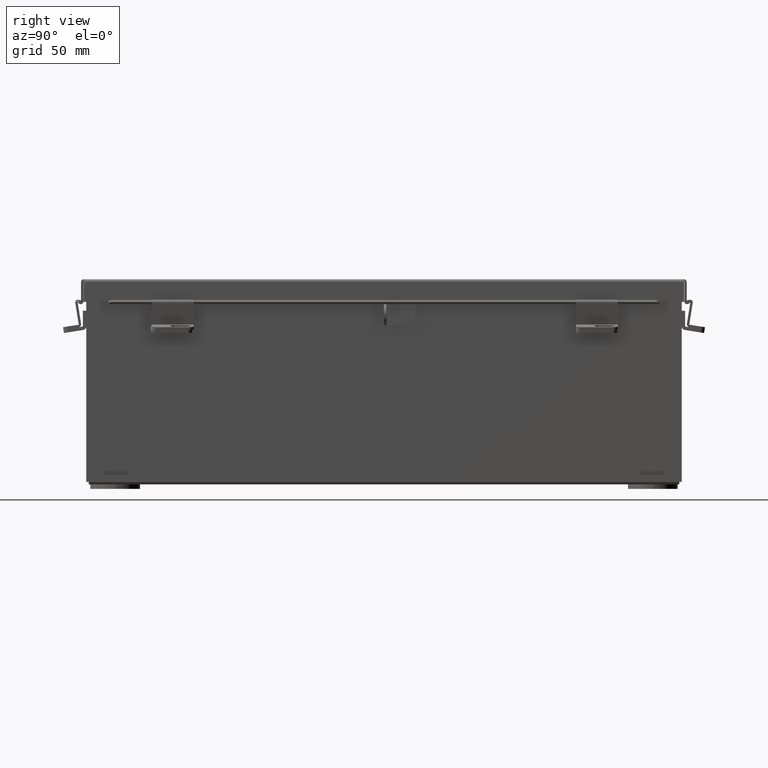
[diagram: clean part render]
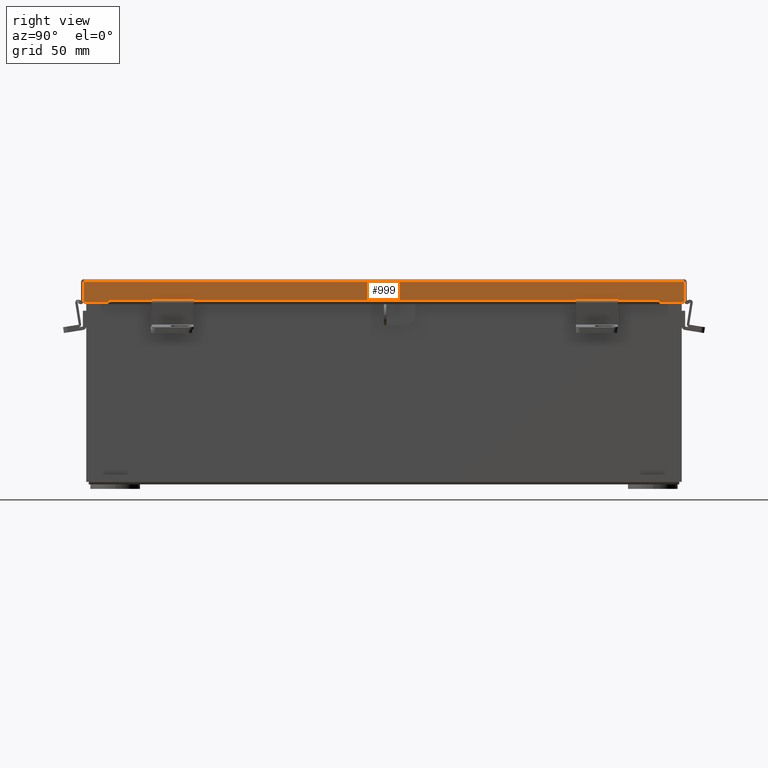
[diagram: same view with one face highlighted and labeled with its STEP entity id]
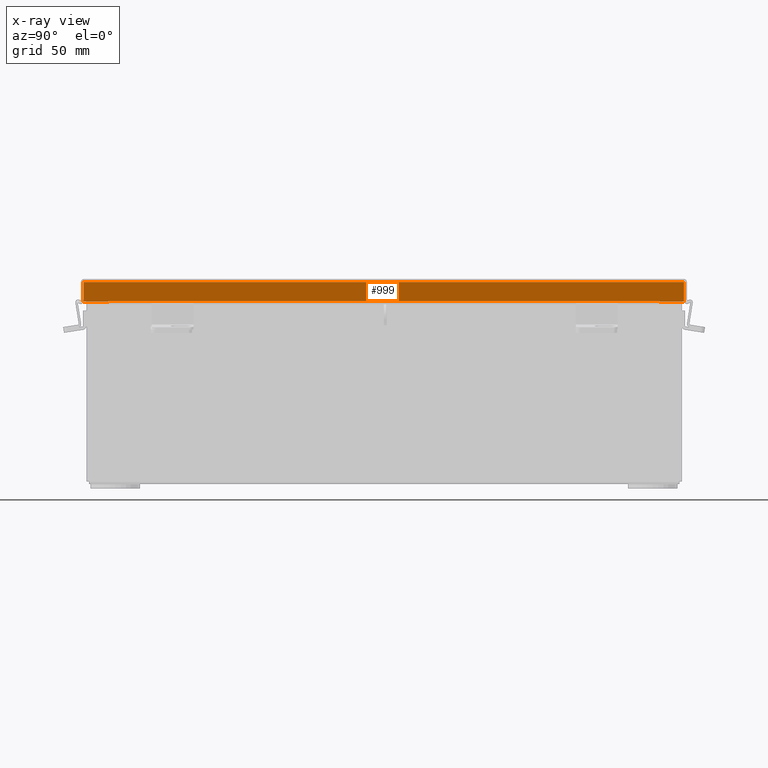
[diagram: x-ray of the same camera — body ghosted, the highlighted face saturated]
A machine part, right view. The second image highlights one B-rep face of the part: STEP entity #999.
The next image is the same camera in x-ray: the body ghosted, the highlighted face saturated — about 0% of this face is hidden behind the body in this view.
In plain terms, the highlighted planar face has unit normal (-1, 0, -0).
Its self-contained STEP definition (entity closure, byte-faithful):
#39 = VECTOR ( 'NONE', #4842, 39.37007874015748100 ) ;
#281 = ORIENTED_EDGE ( 'NONE', *, *, #16780, .T. ) ;
#288 = LINE ( 'NONE', #6916, #15415 ) ;
#876 = ORIENTED_EDGE ( 'NONE', *, *, #6637, .F. ) ;
#951 = VERTEX_POINT ( 'NONE', #4897 ) ;
#999 = ADVANCED_FACE ( 'NONE', ( #10918 ), #1904, .F. ) ;
#1133 = VECTOR ( 'NONE', #11551, 39.37007874015748100 ) ;
#1185 = AXIS2_PLACEMENT_3D ( 'NONE', #3490, #13787, #4962 ) ;
#1489 = VECTOR ( 'NONE', #17888, 39.37007874015748100 ) ;
#1598 = LINE ( 'NONE', #10055, #1133 ) ;
#1849 = EDGE_CURVE ( 'NONE', #17436, #951, #5839, .T. ) ;
#1904 = PLANE ( 'NONE',  #1185 ) ;
#2116 = CARTESIAN_POINT ( 'NONE',  ( -3.156250000000009800, 9.074478932188142700, 0.01300000000000010700 ) ) ;
#2332 = VECTOR ( 'NONE', #11973, 39.37007874015748100 ) ;
#3228 = CARTESIAN_POINT ( 'NONE',  ( -3.156250000000012000, -3.734948428837859500E-018, 0.6122999999999994000 ) ) ;
#3342 = LINE ( 'NONE', #5749, #10669 ) ;
#3490 = CARTESIAN_POINT ( 'NONE',  ( -3.156250000000009800, 0.0000000000000000000, -1.202013117212275700E-014 ) ) ;
#4094 = ORIENTED_EDGE ( 'NONE', *, *, #16694, .F. ) ;
#4302 = EDGE_CURVE ( 'NONE', #13264, #11294, #3342, .T. ) ;
#4377 = LINE ( 'NONE', #12174, #39 ) ;
#4842 = DIRECTION ( 'NONE',  ( 7.009925220120712300E-014, 7.009925220120695800E-014, -1.000000000000000000 ) ) ;
#4897 = CARTESIAN_POINT ( 'NONE',  ( -3.156250000000012000, -8.324478932188121400, 0.6123000000000070600 ) ) ;
#4939 = CARTESIAN_POINT ( 'NONE',  ( -3.156250000000012000, 9.074478932188142700, 0.6122999999999994000 ) ) ;
#4962 = DIRECTION ( 'NONE',  ( 3.569293475308535600E-015, -1.708993195451452600E-029, -1.000000000000000000 ) ) ;
#5732 = LINE ( 'NONE', #10201, #16058 ) ;
#5749 = CARTESIAN_POINT ( 'NONE',  ( -3.156250000000012000, 8.324478932188140900, 0.5967115427318793200 ) ) ;
#5839 = LINE ( 'NONE', #3228, #1489 ) ;
#5863 = CARTESIAN_POINT ( 'NONE',  ( -3.156250000000012000, 8.324478932188140900, 0.5967115427318793200 ) ) ;
#5951 = LINE ( 'NONE', #9586, #17168 ) ;
#6637 = EDGE_CURVE ( 'NONE', #13304, #11955, #288, .T. ) ;
#6916 = CARTESIAN_POINT ( 'NONE',  ( -3.156250000000009800, 9.156250000000008900, 0.01300000000000010700 ) ) ;
#8375 = ORIENTED_EDGE ( 'NONE', *, *, #9858, .F. ) ;
#8379 = DIRECTION ( 'NONE',  ( -3.683464985383588700E-029, 1.000000000000000000, -2.983588252464364200E-017 ) ) ;
#8858 = CARTESIAN_POINT ( 'NONE',  ( -3.156250000000012000, 8.324478932188140900, 0.6122999999999994000 ) ) ;
#8977 = CARTESIAN_POINT ( 'NONE',  ( -3.156250000000017300, -9.074478932188125000, -1.092739197465705300E-014 ) ) ;
#9168 = EDGE_CURVE ( 'NONE', #13304, #17436, #17930, .T. ) ;
#9397 = ORIENTED_EDGE ( 'NONE', *, *, #10303, .F. ) ;
#9586 = CARTESIAN_POINT ( 'NONE',  ( -3.156250000000009800, 9.074478932188142700, 0.0000000000000000000 ) ) ;
#9858 = EDGE_CURVE ( 'NONE', #13997, #13264, #4377, .T. ) ;
#10055 = CARTESIAN_POINT ( 'NONE',  ( -3.156250000000012000, -3.734948428837859500E-018, 0.6122999999999994000 ) ) ;
#10201 = CARTESIAN_POINT ( 'NONE',  ( -3.156250000000012000, -8.324478932188121400, 0.5967115427318869800 ) ) ;
#10303 = EDGE_CURVE ( 'NONE', #11294, #951, #5732, .T. ) ;
#10669 = VECTOR ( 'NONE', #16011, 39.37007874015748100 ) ;
#10918 = FACE_OUTER_BOUND ( 'NONE', #18900, .T. ) ;
#11074 = ORIENTED_EDGE ( 'NONE', *, *, #9168, .T. ) ;
#11294 = VERTEX_POINT ( 'NONE', #15091 ) ;
#11375 = VERTEX_POINT ( 'NONE', #4939 ) ;
#11551 = DIRECTION ( 'NONE',  ( -3.675400233576648500E-029, 1.000000000000000000, 1.735493991486226000E-029 ) ) ;
#11955 = VERTEX_POINT ( 'NONE', #2116 ) ;
#11973 = DIRECTION ( 'NONE',  ( -3.569293475308535600E-015, 1.708993195451452300E-029, 1.000000000000000000 ) ) ;
#12174 = CARTESIAN_POINT ( 'NONE',  ( -3.156250000000012900, 8.324478932188140900, 0.6122999999999994000 ) ) ;
#13264 = VERTEX_POINT ( 'NONE', #5863 ) ;
#13279 = ORIENTED_EDGE ( 'NONE', *, *, #4302, .F. ) ;
#13304 = VERTEX_POINT ( 'NONE', #17641 ) ;
#13787 = DIRECTION ( 'NONE',  ( 1.000000000000000000, -3.717243110397917000E-029, 3.569293475308535600E-015 ) ) ;
#13997 = VERTEX_POINT ( 'NONE', #8858 ) ;
#15091 = CARTESIAN_POINT ( 'NONE',  ( -3.156250000000012000, -8.324478932188121400, 0.5967115427318869800 ) ) ;
#15176 = ORIENTED_EDGE ( 'NONE', *, *, #1849, .T. ) ;
#15415 = VECTOR ( 'NONE', #8379, 39.37007874015748100 ) ;
#16011 = DIRECTION ( 'NONE',  ( 3.675400233576648500E-029, -1.000000000000000000, -1.735493991486226000E-029 ) ) ;
#16058 = VECTOR ( 'NONE', #16308, 39.37007874015748100 ) ;
#16308 = DIRECTION ( 'NONE',  ( 1.577721810442018700E-030, -7.009925220120449700E-014, 1.000000000000000000 ) ) ;
#16694 = EDGE_CURVE ( 'NONE', #11955, #11375, #5951, .T. ) ;
#16780 = EDGE_CURVE ( 'NONE', #13997, #11375, #1598, .T. ) ;
#17168 = VECTOR ( 'NONE', #18372, 39.37007874015748100 ) ;
#17410 = CARTESIAN_POINT ( 'NONE',  ( -3.156250000000019500, -9.074478932188125000, 0.6123000000000070600 ) ) ;
#17436 = VERTEX_POINT ( 'NONE', #17410 ) ;
#17641 = CARTESIAN_POINT ( 'NONE',  ( -3.156250000000017300, -9.074478932188125000, 0.01300000000000010700 ) ) ;
#17888 = DIRECTION ( 'NONE',  ( -3.675400233576648500E-029, 1.000000000000000000, 1.735493991486226000E-029 ) ) ;
#17930 = LINE ( 'NONE', #8977, #2332 ) ;
#18372 = DIRECTION ( 'NONE',  ( -3.569293475308535600E-015, 1.708993195451452300E-029, 1.000000000000000000 ) ) ;
#18900 = EDGE_LOOP ( 'NONE', ( #8375, #281, #4094, #876, #11074, #15176, #9397, #13279 ) ) ;